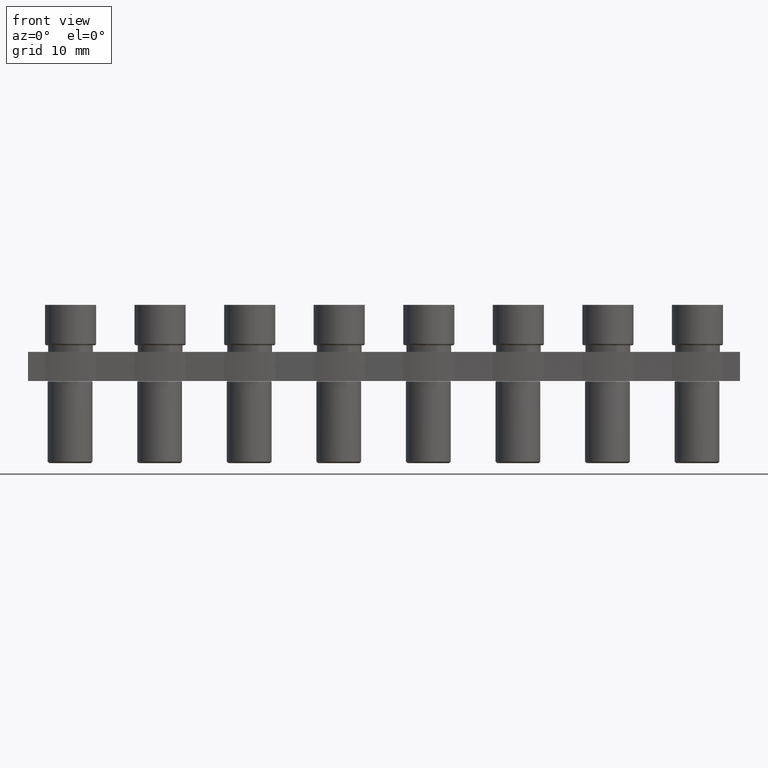
[diagram: clean part render]
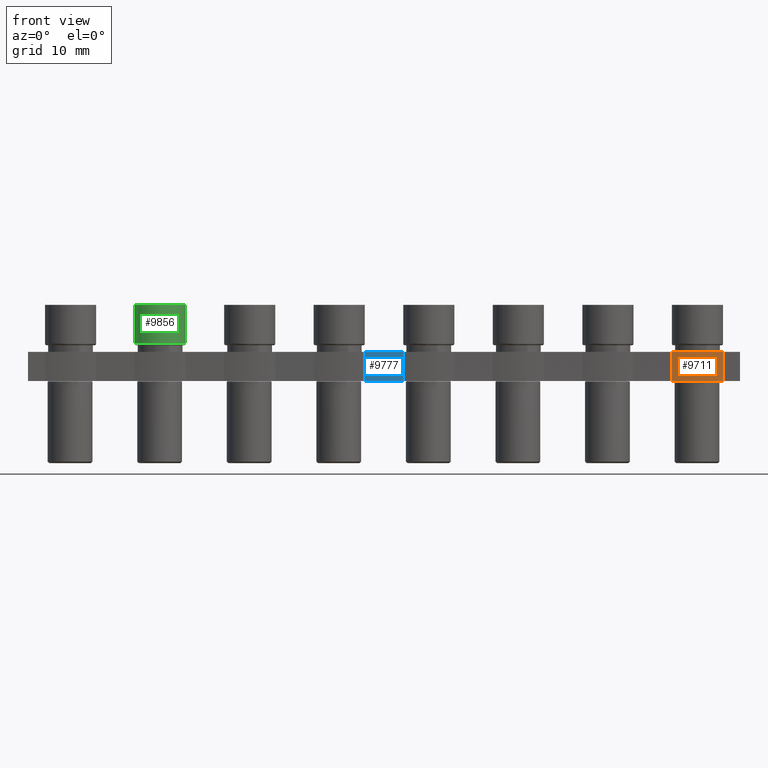
[diagram: same view with three faces highlighted in distinct colors, each labeled with its STEP entity id]
A machine part, front view with three faces highlighted in distinct colors.
Their STEP definitions:

[orange] entity #9711 — the highlighted cylindrical surface (partial cylindrical patch) has radius 17.15 mm, axis along (0, 0, 1).
#172 = VECTOR ( 'NONE', #2300, 1000.000000000000000 ) ;
#256 = AXIS2_PLACEMENT_3D ( 'NONE', #11356, #11343, #11358 ) ;
#274 = CIRCLE ( 'NONE', #256, 17.15000000000021900 ) ;
#437 = AXIS2_PLACEMENT_3D ( 'NONE', #7450, #7465, #7474 ) ;
#662 = CIRCLE ( 'NONE', #698, 17.15000000000021900 ) ;
#698 = AXIS2_PLACEMENT_3D ( 'NONE', #8580, #8600, #8592 ) ;
#1815 = EDGE_CURVE ( 'NONE', #2799, #2796, #662, .T. ) ;
#2284 = LINE ( 'NONE', #2309, #172 ) ;
#2300 = DIRECTION ( 'NONE',  ( 0.0000000000000000000, 0.0000000000000000000, 1.000000000000000000 ) ) ;
#2309 = CARTESIAN_POINT ( 'NONE',  ( 15.44710023062971300, -3.349999999999915300, -9.302499305941093900 ) ) ;
#2796 = VERTEX_POINT ( 'NONE', #4753 ) ;
#2799 = VERTEX_POINT ( 'NONE', #4741 ) ;
#2911 = VERTEX_POINT ( 'NONE', #4843 ) ;
#2914 = VERTEX_POINT ( 'NONE', #4855 ) ;
#3838 = EDGE_LOOP ( 'NONE', ( #5500, #5480, #5491, #5490 ) ) ;
#4741 = CARTESIAN_POINT ( 'NONE',  ( 15.44710023062971500, -3.349999999999914400, -0.9000000000000014700 ) ) ;
#4753 = CARTESIAN_POINT ( 'NONE',  ( 8.552899769370297300, -3.349999999999914800, -0.9000000000000014700 ) ) ;
#4843 = CARTESIAN_POINT ( 'NONE',  ( 8.552899769370302600, -3.349999999999916600, -4.800000000000001600 ) ) ;
#4855 = CARTESIAN_POINT ( 'NONE',  ( 15.44710023062973500, -3.349999999999912600, -4.800000000000001600 ) ) ;
#5480 = ORIENTED_EDGE ( 'NONE', *, *, #1815, .T. ) ;
#5490 = ORIENTED_EDGE ( 'NONE', *, *, #9582, .F. ) ;
#5491 = ORIENTED_EDGE ( 'NONE', *, *, #12136, .T. ) ;
#5500 = ORIENTED_EDGE ( 'NONE', *, *, #9494, .T. ) ;
#6326 = LINE ( 'NONE', #6355, #10892 ) ;
#6355 = CARTESIAN_POINT ( 'NONE',  ( 8.552899769370297300, -3.349999999999916200, -9.302499305941093900 ) ) ;
#6363 = DIRECTION ( 'NONE',  ( -0.0000000000000000000, -0.0000000000000000000, -1.000000000000000000 ) ) ;
#7445 = FACE_OUTER_BOUND ( 'NONE', #3838, .T. ) ;
#7450 = CARTESIAN_POINT ( 'NONE',  ( 12.00000000000000400, 13.45000000000008600, -9.302499305941093900 ) ) ;
#7461 = CYLINDRICAL_SURFACE ( 'NONE', #437, 17.15000000000021900 ) ;
#7465 = DIRECTION ( 'NONE',  ( 0.0000000000000000000, 0.0000000000000000000, 1.000000000000000000 ) ) ;
#7474 = DIRECTION ( 'NONE',  ( 1.000000000000000000, 0.0000000000000000000, 0.0000000000000000000 ) ) ;
#8580 = CARTESIAN_POINT ( 'NONE',  ( 12.00000000000000400, 13.45000000000008600, -0.9000000000000014700 ) ) ;
#8592 = DIRECTION ( 'NONE',  ( -1.000000000000000000, 0.0000000000000000000, 0.0000000000000000000 ) ) ;
#8600 = DIRECTION ( 'NONE',  ( 0.0000000000000000000, 0.0000000000000000000, -1.000000000000000000 ) ) ;
#9494 = EDGE_CURVE ( 'NONE', #2914, #2799, #2284, .T. ) ;
#9582 = EDGE_CURVE ( 'NONE', #2914, #2911, #274, .T. ) ;
#9711 = ADVANCED_FACE ( 'NONE', ( #7445 ), #7461, .T. ) ;
#10892 = VECTOR ( 'NONE', #6363, 1000.000000000000000 ) ;
#11343 = DIRECTION ( 'NONE',  ( 0.0000000000000000000, 0.0000000000000000000, -1.000000000000000000 ) ) ;
#11356 = CARTESIAN_POINT ( 'NONE',  ( 12.00000000000000400, 13.45000000000008600, -4.800000000000001600 ) ) ;
#11358 = DIRECTION ( 'NONE',  ( -1.000000000000000000, 0.0000000000000000000, 0.0000000000000000000 ) ) ;
#12136 = EDGE_CURVE ( 'NONE', #2796, #2911, #6326, .T. ) ;

[blue] entity #9777 — the highlighted planar face has unit normal (-0, 1, 0).
#257 = VECTOR ( 'NONE', #11317, 1000.000000000000000 ) ;
#514 = AXIS2_PLACEMENT_3D ( 'NONE', #7019, #7020, #6993 ) ;
#682 = VECTOR ( 'NONE', #8543, 1000.000000000000000 ) ;
#767 = VECTOR ( 'NONE', #8962, 1000.000000000000000 ) ;
#776 = VECTOR ( 'NONE', #9070, 1000.000000000000000 ) ;
#1776 = EDGE_CURVE ( 'NONE', #2848, #2843, #8534, .T. ) ;
#2011 = EDGE_CURVE ( 'NONE', #2852, #2848, #8957, .T. ) ;
#2083 = EDGE_CURVE ( 'NONE', #2843, #2836, #9034, .T. ) ;
#2836 = VERTEX_POINT ( 'NONE', #4738 ) ;
#2843 = VERTEX_POINT ( 'NONE', #4776 ) ;
#2848 = VERTEX_POINT ( 'NONE', #4824 ) ;
#2852 = VERTEX_POINT ( 'NONE', #4822 ) ;
#4738 = CARTESIAN_POINT ( 'NONE',  ( -27.44710023062970800, -3.349999999999922400, -4.800000000000001600 ) ) ;
#4776 = CARTESIAN_POINT ( 'NONE',  ( -27.44710023062970100, -3.349999999999921000, -0.9000000000000014700 ) ) ;
#4822 = CARTESIAN_POINT ( 'NONE',  ( -32.55289976937029900, -3.349999999999923300, -4.800000000000001600 ) ) ;
#4824 = CARTESIAN_POINT ( 'NONE',  ( -32.55289976937028500, -3.349999999999922400, -0.9000000000000014700 ) ) ;
#5798 = ORIENTED_EDGE ( 'NONE', *, *, #2011, .F. ) ;
#5836 = ORIENTED_EDGE ( 'NONE', *, *, #1776, .F. ) ;
#5843 = ORIENTED_EDGE ( 'NONE', *, *, #2083, .F. ) ;
#5844 = ORIENTED_EDGE ( 'NONE', *, *, #9570, .F. ) ;
#6993 = DIRECTION ( 'NONE',  ( -1.000000000000000000, -1.245679091791856200E-016, 0.0000000000000000000 ) ) ;
#7013 = FACE_OUTER_BOUND ( 'NONE', #8357, .T. ) ;
#7017 = PLANE ( 'NONE',  #514 ) ;
#7019 = CARTESIAN_POINT ( 'NONE',  ( -7.849999999999992500, -3.349999999999918400, -0.9000000000000014700 ) ) ;
#7020 = DIRECTION ( 'NONE',  ( -1.245679091791856200E-016, 1.000000000000000000, 0.0000000000000000000 ) ) ;
#8357 = EDGE_LOOP ( 'NONE', ( #5843, #5836, #5798, #5844 ) ) ;
#8534 = LINE ( 'NONE', #8545, #682 ) ;
#8543 = DIRECTION ( 'NONE',  ( 1.000000000000000000, 1.245679091791856200E-016, -0.0000000000000000000 ) ) ;
#8545 = CARTESIAN_POINT ( 'NONE',  ( -7.849999999999992500, -3.349999999999918400, -0.9000000000000014700 ) ) ;
#8941 = CARTESIAN_POINT ( 'NONE',  ( -32.55289976937029200, -3.349999999999923700, -9.302499305941093900 ) ) ;
#8957 = LINE ( 'NONE', #8941, #767 ) ;
#8962 = DIRECTION ( 'NONE',  ( 0.0000000000000000000, 0.0000000000000000000, 1.000000000000000000 ) ) ;
#9034 = LINE ( 'NONE', #9074, #776 ) ;
#9070 = DIRECTION ( 'NONE',  ( -0.0000000000000000000, -0.0000000000000000000, -1.000000000000000000 ) ) ;
#9074 = CARTESIAN_POINT ( 'NONE',  ( -27.44710023062970100, -3.349999999999922400, -9.302499305941093900 ) ) ;
#9570 = EDGE_CURVE ( 'NONE', #2836, #2852, #11337, .T. ) ;
#9777 = ADVANCED_FACE ( 'NONE', ( #7013 ), #7017, .F. ) ;
#11317 = DIRECTION ( 'NONE',  ( -1.000000000000000000, 0.0000000000000000000, -0.0000000000000000000 ) ) ;
#11325 = CARTESIAN_POINT ( 'NONE',  ( -101.8500000000000500, -3.349999999999922400, -4.800000000000001600 ) ) ;
#11337 = LINE ( 'NONE', #11325, #257 ) ;

[green] entity #9856 — the highlighted cylindrical surface (edge-blend (fillet) strip) has radius 3.425 mm, axis along (-0, -0, -1).
#98 = VECTOR ( 'NONE', #8232, 1000.000000000000000 ) ;
#567 = AXIS2_PLACEMENT_3D ( 'NONE', #8056, #8079, #8072 ) ;
#827 = CIRCLE ( 'NONE', #830, 3.424999999999997600 ) ;
#830 = AXIS2_PLACEMENT_3D ( 'NONE', #3951, #3953, #3954 ) ;
#1177 = CARTESIAN_POINT ( 'NONE',  ( -56.57500000000000300, -1.102701580376086200E-014, 5.400000000000000400 ) ) ;
#1224 = CARTESIAN_POINT ( 'NONE',  ( -63.42499999999999700, -1.144645733246883200E-014, 0.1999999999999996500 ) ) ;
#1304 = CARTESIAN_POINT ( 'NONE',  ( -56.57500000000000300, -1.102701580376086200E-014, 0.1999999999999996500 ) ) ;
#2185 = EDGE_CURVE ( 'NONE', #6101, #6065, #827, .T. ) ;
#2626 = VERTEX_POINT ( 'NONE', #4531 ) ;
#3213 = ORIENTED_EDGE ( 'NONE', *, *, #2185, .F. ) ;
#3215 = ORIENTED_EDGE ( 'NONE', *, *, #9929, .T. ) ;
#3222 = ORIENTED_EDGE ( 'NONE', *, *, #12062, .T. ) ;
#3290 = ORIENTED_EDGE ( 'NONE', *, *, #9893, .F. ) ;
#3907 = VERTEX_POINT ( 'NONE', #1177 ) ;
#3951 = CARTESIAN_POINT ( 'NONE',  ( -60.00000000000000000, -1.144645733246883200E-014, 0.1999999999999996500 ) ) ;
#3953 = DIRECTION ( 'NONE',  ( -0.0000000000000000000, -0.0000000000000000000, -1.000000000000000000 ) ) ;
#3954 = DIRECTION ( 'NONE',  ( 1.000000000000000000, 0.0000000000000000000, 0.0000000000000000000 ) ) ;
#4531 = CARTESIAN_POINT ( 'NONE',  ( -63.42499999999999700, -1.144645733246883200E-014, 5.400000000000000400 ) ) ;
#6065 = VERTEX_POINT ( 'NONE', #1224 ) ;
#6101 = VERTEX_POINT ( 'NONE', #1304 ) ;
#6490 = DIRECTION ( 'NONE',  ( -0.0000000000000000000, -0.0000000000000000000, -1.000000000000000000 ) ) ;
#6496 = CARTESIAN_POINT ( 'NONE',  ( -60.00000000000000000, -1.144645733246883200E-014, 5.400000000000000400 ) ) ;
#6499 = DIRECTION ( 'NONE',  ( -1.000000000000000000, 0.0000000000000000000, 0.0000000000000000000 ) ) ;
#7588 = CARTESIAN_POINT ( 'NONE',  ( -63.42499999999999700, -1.144645733246883200E-014, 5.400000000000000400 ) ) ;
#7594 = DIRECTION ( 'NONE',  ( -0.0000000000000000000, -0.0000000000000000000, -1.000000000000000000 ) ) ;
#7602 = LINE ( 'NONE', #7588, #10972 ) ;
#8056 = CARTESIAN_POINT ( 'NONE',  ( -60.00000000000000000, -1.144645733246883200E-014, 5.400000000000000400 ) ) ;
#8072 = DIRECTION ( 'NONE',  ( -1.000000000000000000, 0.0000000000000000000, 0.0000000000000000000 ) ) ;
#8078 = FACE_OUTER_BOUND ( 'NONE', #8388, .T. ) ;
#8079 = DIRECTION ( 'NONE',  ( -0.0000000000000000000, -0.0000000000000000000, -1.000000000000000000 ) ) ;
#8093 = CYLINDRICAL_SURFACE ( 'NONE', #567, 3.424999999999997600 ) ;
#8229 = LINE ( 'NONE', #8231, #98 ) ;
#8231 = CARTESIAN_POINT ( 'NONE',  ( -56.57500000000000300, -1.102701580376086200E-014, 5.400000000000000400 ) ) ;
#8232 = DIRECTION ( 'NONE',  ( -0.0000000000000000000, -0.0000000000000000000, -1.000000000000000000 ) ) ;
#8388 = EDGE_LOOP ( 'NONE', ( #3290, #3222, #3215, #3213 ) ) ;
#9856 = ADVANCED_FACE ( 'NONE', ( #8078 ), #8093, .T. ) ;
#9893 = EDGE_CURVE ( 'NONE', #3907, #6101, #8229, .T. ) ;
#9929 = EDGE_CURVE ( 'NONE', #2626, #6065, #7602, .T. ) ;
#10792 = CIRCLE ( 'NONE', #10804, 3.424999999999997600 ) ;
#10804 = AXIS2_PLACEMENT_3D ( 'NONE', #6496, #6490, #6499 ) ;
#10972 = VECTOR ( 'NONE', #7594, 1000.000000000000000 ) ;
#12062 = EDGE_CURVE ( 'NONE', #3907, #2626, #10792, .T. ) ;